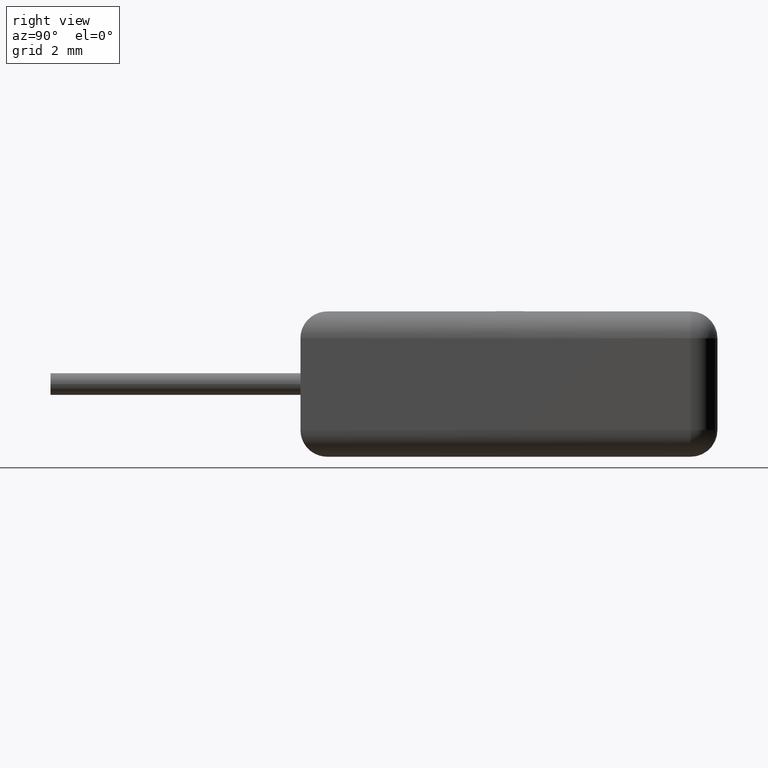
[diagram: clean part render]
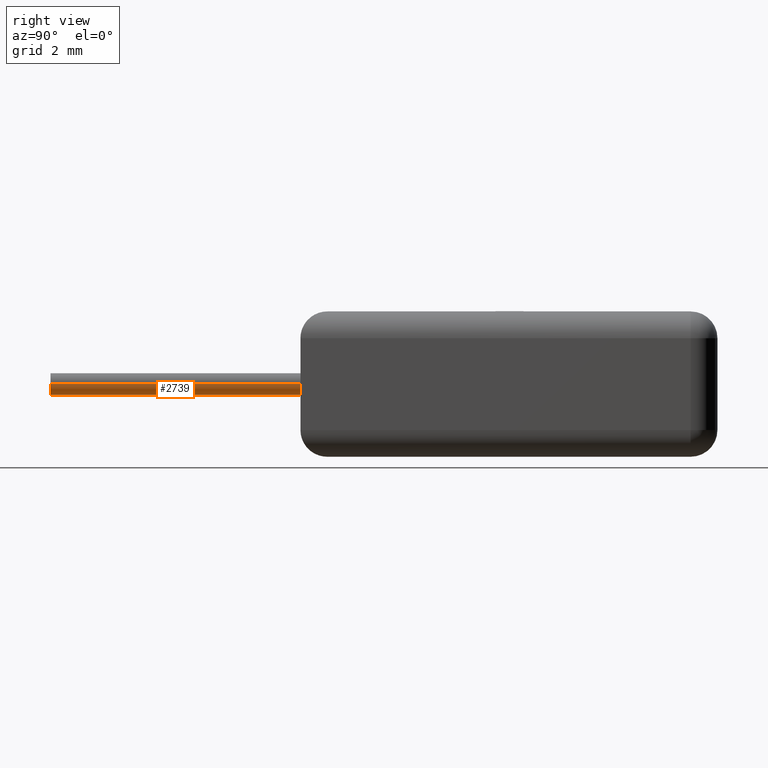
[diagram: same view with one face highlighted and labeled with its STEP entity id]
A machine part, right view. The second image highlights one B-rep face of the part: STEP entity #2739.
In plain terms, the highlighted cylindrical surface (edge-blend (fillet) strip) has radius 0.305 mm, axis along (0, 1, -0).
Its self-contained STEP definition (entity closure, byte-faithful):
#90 = VERTEX_POINT ( 'NONE', #2444 ) ;
#148 = DIRECTION ( 'NONE',  ( 1.224646799147353200E-016, 1.000000000000000000, -0.0000000000000000000 ) ) ;
#157 = DIRECTION ( 'NONE',  ( 1.224646799147353200E-016, 1.000000000000000000, -0.0000000000000000000 ) ) ;
#398 = DIRECTION ( 'NONE',  ( 1.224646799147353200E-016, 1.000000000000000000, -0.0000000000000000000 ) ) ;
#465 = AXIS2_PLACEMENT_3D ( 'NONE', #3591, #157, #1020 ) ;
#859 = EDGE_LOOP ( 'NONE', ( #3111, #3005, #3347, #3515 ) ) ;
#988 = CIRCLE ( 'NONE', #1951, 0.3050000000000001600 ) ;
#1020 = DIRECTION ( 'NONE',  ( -1.000000000000000000, 1.224646799147353900E-016, 0.0000000000000000000 ) ) ;
#1329 = CIRCLE ( 'NONE', #465, 0.3050000000000001600 ) ;
#1375 = EDGE_CURVE ( 'NONE', #1953, #90, #1329, .T. ) ;
#1481 = LINE ( 'NONE', #2989, #3464 ) ;
#1567 = CARTESIAN_POINT ( 'NONE',  ( -0.8350000000000010700, -7.000000000000000900, 2.035000000000000100 ) ) ;
#1634 = FACE_OUTER_BOUND ( 'NONE', #859, .T. ) ;
#1951 = AXIS2_PLACEMENT_3D ( 'NONE', #2372, #3258, #2117 ) ;
#1953 = VERTEX_POINT ( 'NONE', #2098 ) ;
#2098 = CARTESIAN_POINT ( 'NONE',  ( -0.8350000000000001900, -7.990820364436479900E-016, 2.035000000000000100 ) ) ;
#2117 = DIRECTION ( 'NONE',  ( -1.000000000000000000, 0.0000000000000000000, 0.0000000000000000000 ) ) ;
#2194 = DIRECTION ( 'NONE',  ( 1.224646799147353200E-016, 1.000000000000000000, -0.0000000000000000000 ) ) ;
#2228 = CARTESIAN_POINT ( 'NONE',  ( -1.445000000000001400, -7.000000000000000900, 2.035000000000000100 ) ) ;
#2339 = AXIS2_PLACEMENT_3D ( 'NONE', #3613, #148, #3357 ) ;
#2372 = CARTESIAN_POINT ( 'NONE',  ( -1.140000000000001200, -7.000000000000000900, 2.035000000000000100 ) ) ;
#2402 = CYLINDRICAL_SURFACE ( 'NONE', #2339, 0.3050000000000001600 ) ;
#2444 = CARTESIAN_POINT ( 'NONE',  ( -1.445000000000000500, -7.243785816956593800E-016, 2.035000000000000100 ) ) ;
#2582 = VECTOR ( 'NONE', #2194, 1000.000000000000000 ) ;
#2694 = EDGE_CURVE ( 'NONE', #2788, #90, #3483, .T. ) ;
#2739 = ADVANCED_FACE ( 'NONE', ( #1634 ), #2402, .T. ) ;
#2788 = VERTEX_POINT ( 'NONE', #3594 ) ;
#2989 = CARTESIAN_POINT ( 'NONE',  ( -0.8350000000000010700, -7.000000000000000900, 2.035000000000000100 ) ) ;
#3005 = ORIENTED_EDGE ( 'NONE', *, *, #3112, .T. ) ;
#3111 = ORIENTED_EDGE ( 'NONE', *, *, #3226, .F. ) ;
#3112 = EDGE_CURVE ( 'NONE', #3525, #2788, #988, .T. ) ;
#3226 = EDGE_CURVE ( 'NONE', #3525, #1953, #1481, .T. ) ;
#3258 = DIRECTION ( 'NONE',  ( 1.224646799147353200E-016, 1.000000000000000000, -0.0000000000000000000 ) ) ;
#3347 = ORIENTED_EDGE ( 'NONE', *, *, #2694, .T. ) ;
#3357 = DIRECTION ( 'NONE',  ( -1.000000000000000000, 0.0000000000000000000, 0.0000000000000000000 ) ) ;
#3464 = VECTOR ( 'NONE', #398, 1000.000000000000000 ) ;
#3483 = LINE ( 'NONE', #2228, #2582 ) ;
#3515 = ORIENTED_EDGE ( 'NONE', *, *, #1375, .F. ) ;
#3525 = VERTEX_POINT ( 'NONE', #1567 ) ;
#3591 = CARTESIAN_POINT ( 'NONE',  ( -1.140000000000000300, -7.617303090696536400E-016, 2.035000000000000100 ) ) ;
#3594 = CARTESIAN_POINT ( 'NONE',  ( -1.445000000000001400, -7.000000000000000900, 2.035000000000000100 ) ) ;
#3613 = CARTESIAN_POINT ( 'NONE',  ( -1.140000000000001200, -7.000000000000000900, 2.035000000000000100 ) ) ;